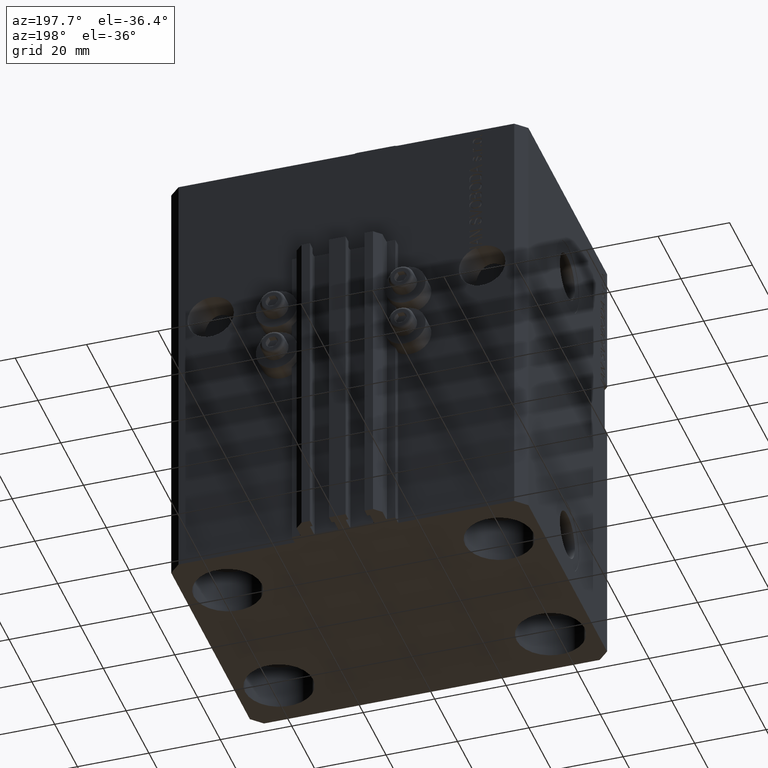
[diagram: clean part render]
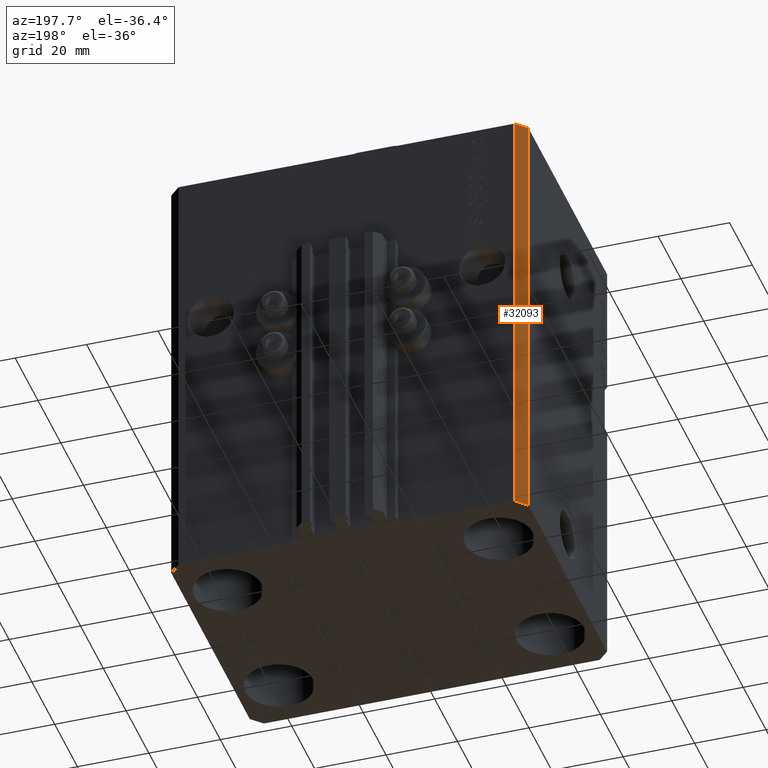
[diagram: same view with one face highlighted and labeled with its STEP entity id]
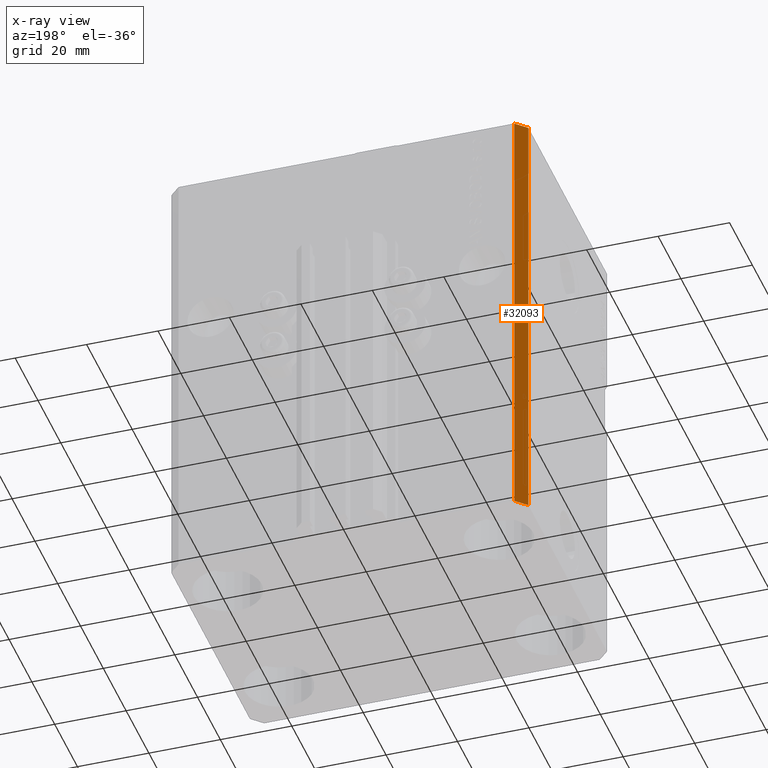
[diagram: x-ray of the same camera — body ghosted, the highlighted face saturated]
A machine part, auxiliary view. The second image highlights one B-rep face of the part: STEP entity #32093.
The next image is the same camera in x-ray: the body ghosted, the highlighted face saturated — about 0% of this face is hidden behind the body in this view.
In plain terms, the highlighted planar face has unit normal (-0.7071, 0.7071, 0).
Its self-contained STEP definition (entity closure, byte-faithful):
#4494 = DIRECTION ( 'NONE',  ( 0.000000000000000000, 0.000000000000000000, 1.000000000000000000 ) ) ;
#4632 = AXIS2_PLACEMENT_3D ( 'NONE', #10526, #47309, #40004 ) ;
#7879 = VECTOR ( 'NONE', #39661, 1000.000000000000000 ) ;
#10526 = CARTESIAN_POINT ( 'NONE',  ( -47.00000000000001421, 37.50000000000000000, -125.0000000000000000 ) ) ;
#11964 = VECTOR ( 'NONE', #16100, 1000.000000000000000 ) ;
#12192 = CARTESIAN_POINT ( 'NONE',  ( -47.00000000000001421, 37.50000000000000000, 0.000000000000000000 ) ) ;
#14184 = PLANE ( 'NONE',  #4632 ) ;
#14264 = VERTEX_POINT ( 'NONE', #14998 ) ;
#14335 = VERTEX_POINT ( 'NONE', #45200 ) ;
#14381 = EDGE_CURVE ( 'NONE', #15268, #45573, #23010, .T. ) ;
#14998 = CARTESIAN_POINT ( 'NONE',  ( -50.00000000000001421, 34.50000000000000000, -125.0000000000000000 ) ) ;
#15268 = VERTEX_POINT ( 'NONE', #40131 ) ;
#16100 = DIRECTION ( 'NONE',  ( -0.7071067811865483499, -0.7071067811865466846, 0.000000000000000000 ) ) ;
#16489 = VECTOR ( 'NONE', #4494, 1000.000000000000000 ) ;
#19519 = ORIENTED_EDGE ( 'NONE', *, *, #38723, .T. ) ;
#19752 = LINE ( 'NONE', #12192, #11964 ) ;
#21854 = CARTESIAN_POINT ( 'NONE',  ( -47.00000000000001421, 37.50000000000000000, 0.000000000000000000 ) ) ;
#21923 = VECTOR ( 'NONE', #44041, 1000.000000000000000 ) ;
#22862 = ORIENTED_EDGE ( 'NONE', *, *, #36046, .T. ) ;
#23010 = LINE ( 'NONE', #37865, #16489 ) ;
#25521 = CARTESIAN_POINT ( 'NONE',  ( -47.00000000000001421, 37.50000000000000000, -125.0000000000000000 ) ) ;
#27347 = ORIENTED_EDGE ( 'NONE', *, *, #14381, .F. ) ;
#29179 = CARTESIAN_POINT ( 'NONE',  ( -50.00000000000001421, 34.50000000000000000, -125.0000000000000000 ) ) ;
#32093 = ADVANCED_FACE ( 'NONE', ( #42937 ), #14184, .T. ) ;
#36046 = EDGE_CURVE ( 'NONE', #14264, #14335, #47457, .T. ) ;
#37865 = CARTESIAN_POINT ( 'NONE',  ( -47.00000000000001421, 37.50000000000000000, -125.0000000000000000 ) ) ;
#38723 = EDGE_CURVE ( 'NONE', #15268, #14264, #44042, .T. ) ;
#39661 = DIRECTION ( 'NONE',  ( -0.7071067811865483499, -0.7071067811865466846, 0.000000000000000000 ) ) ;
#39698 = ORIENTED_EDGE ( 'NONE', *, *, #43964, .F. ) ;
#40004 = DIRECTION ( 'NONE',  ( -0.7071067811865483499, -0.7071067811865466846, 0.000000000000000000 ) ) ;
#40131 = CARTESIAN_POINT ( 'NONE',  ( -47.00000000000001421, 37.50000000000000000, -125.0000000000000000 ) ) ;
#41517 = EDGE_LOOP ( 'NONE', ( #39698, #27347, #19519, #22862 ) ) ;
#42937 = FACE_OUTER_BOUND ( 'NONE', #41517, .T. ) ;
#43964 = EDGE_CURVE ( 'NONE', #45573, #14335, #19752, .T. ) ;
#44041 = DIRECTION ( 'NONE',  ( 0.000000000000000000, 0.000000000000000000, 1.000000000000000000 ) ) ;
#44042 = LINE ( 'NONE', #25521, #7879 ) ;
#45200 = CARTESIAN_POINT ( 'NONE',  ( -50.00000000000001421, 34.50000000000000000, 0.000000000000000000 ) ) ;
#45573 = VERTEX_POINT ( 'NONE', #21854 ) ;
#47309 = DIRECTION ( 'NONE',  ( -0.7071067811865466846, 0.7071067811865483499, 0.000000000000000000 ) ) ;
#47457 = LINE ( 'NONE', #29179, #21923 ) ;